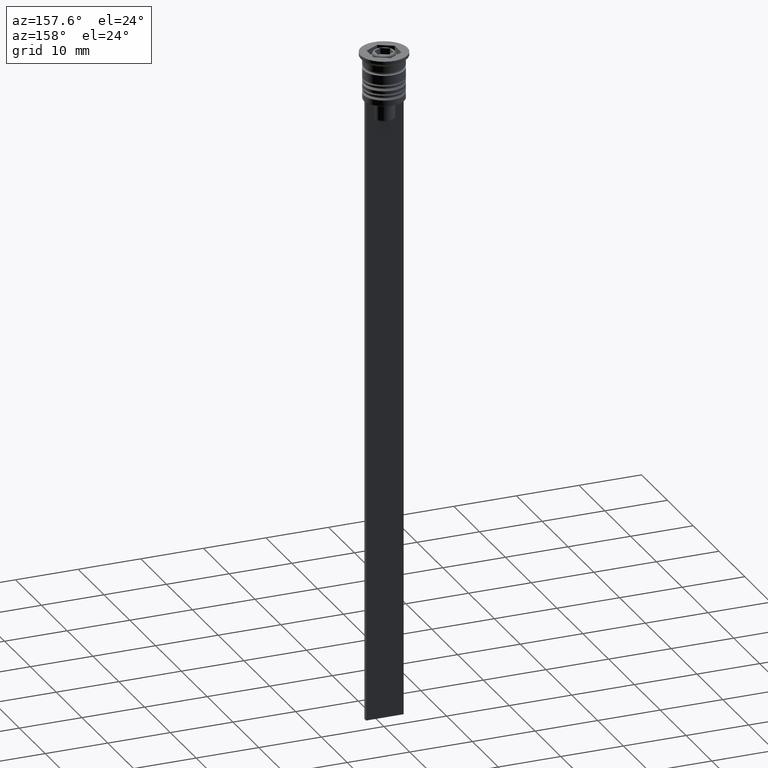
[diagram: clean part render]
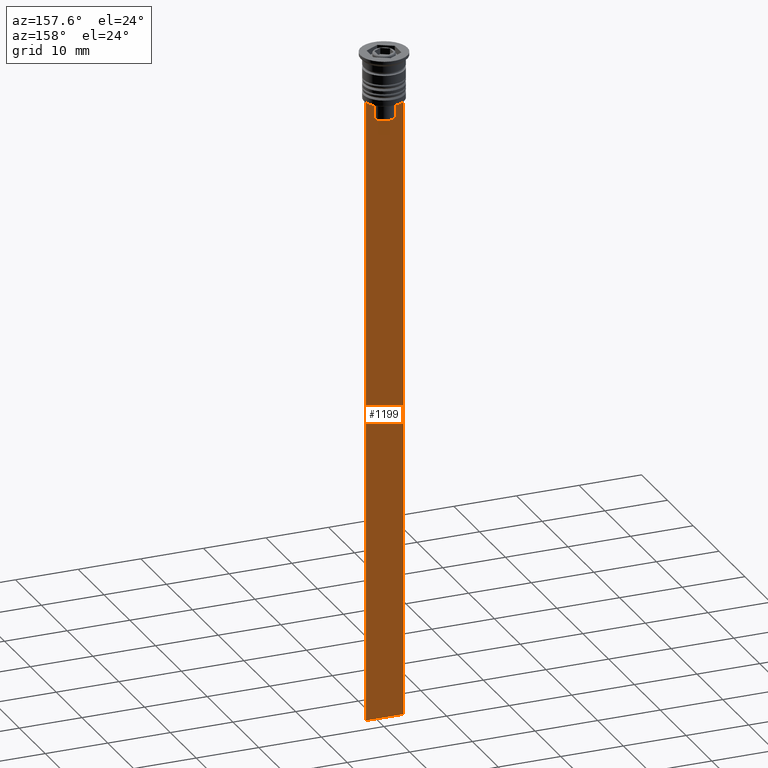
[diagram: same view with one face highlighted and labeled with its STEP entity id]
A machine part, auxiliary view. The second image highlights one B-rep face of the part: STEP entity #1199.
In plain terms, the highlighted planar face has unit normal (0, -1, -0).
Its self-contained STEP definition (entity closure, byte-faithful):
#1 = ORIENTED_EDGE ( 'NONE', *, *, #1791, .T. ) ;
#15 = DIRECTION ( 'NONE',  ( 1.000000000000000000, 0.000000000000000000, 0.000000000000000000 ) ) ;
#63 = CARTESIAN_POINT ( 'NONE',  ( -1.782527878033863589, 0.3500000000000000333, -7.833794036819862860 ) ) ;
#83 = CARTESIAN_POINT ( 'NONE',  ( -2.121320343559647270, 0.3500000000000000333, -7.500000000000000000 ) ) ;
#147 = DIRECTION ( 'NONE',  ( 0.000000000000000000, 0.000000000000000000, -1.000000000000000000 ) ) ;
#186 = CARTESIAN_POINT ( 'NONE',  ( -1.612451549659713601, 0.3500000000000000333, -8.000000000000000000 ) ) ;
#240 = EDGE_CURVE ( 'NONE', #1633, #662, #942, .T. ) ;
#242 = EDGE_CURVE ( 'NONE', #1014, #662, #1779, .T. ) ;
#254 = DIRECTION ( 'NONE',  ( -1.000000000000000000, 0.000000000000000000, 0.000000000000000000 ) ) ;
#269 = DIRECTION ( 'NONE',  ( 0.000000000000000000, 0.000000000000000000, -1.000000000000000000 ) ) ;
#354 = DIRECTION ( 'NONE',  ( 0.000000000000000000, 0.000000000000000000, -1.000000000000000000 ) ) ;
#357 = LINE ( 'NONE', #713, #520 ) ;
#391 = LINE ( 'NONE', #906, #655 ) ;
#420 = CARTESIAN_POINT ( 'NONE',  ( -3.000000000000004441, 0.3499999999999999223, -7.500000000000000000 ) ) ;
#431 = VECTOR ( 'NONE', #1282, 1000.000000000000000 ) ;
#443 = VERTEX_POINT ( 'NONE', #974 ) ;
#469 = CARTESIAN_POINT ( 'NONE',  ( 1.952040775369266346, 0.3500000000000000333, -7.667021484535463394 ) ) ;
#492 = CARTESIAN_POINT ( 'NONE',  ( 1.612451549659713601, 0.3500000000000000333, 0.000000000000000000 ) ) ;
#494 = CARTESIAN_POINT ( 'NONE',  ( 2.121320343559647270, 0.3500000000000000333, -7.500000000000000000 ) ) ;
#518 = VERTEX_POINT ( 'NONE', #1535 ) ;
#520 = VECTOR ( 'NONE', #15, 1000.000000000000000 ) ;
#550 = ORIENTED_EDGE ( 'NONE', *, *, #242, .T. ) ;
#566 = CARTESIAN_POINT ( 'NONE',  ( -3.000000000000004441, 0.3500000000000000333, -107.5000000000000000 ) ) ;
#574 = LINE ( 'NONE', #914, #733 ) ;
#606 = ORIENTED_EDGE ( 'NONE', *, *, #1078, .T. ) ;
#629 = CARTESIAN_POINT ( 'NONE',  ( 2.999999999999995559, 0.3500000000000000333, -1.459304675784417915 ) ) ;
#630 = VERTEX_POINT ( 'NONE', #1396 ) ;
#655 = VECTOR ( 'NONE', #1425, 1000.000000000000000 ) ;
#658 = AXIS2_PLACEMENT_3D ( 'NONE', #629, #2154, #269 ) ;
#662 = VERTEX_POINT ( 'NONE', #566 ) ;
#690 = VECTOR ( 'NONE', #354, 1000.000000000000000 ) ;
#713 = CARTESIAN_POINT ( 'NONE',  ( 2.999999999999995559, 0.3500000000000000333, -7.500000000000000000 ) ) ;
#725 = VECTOR ( 'NONE', #254, 1000.000000000000000 ) ;
#733 = VECTOR ( 'NONE', #1431, 1000.000000000000000 ) ;
#868 = CARTESIAN_POINT ( 'NONE',  ( -1.612451549659713601, 0.3500000000000000333, 0.000000000000000000 ) ) ;
#883 = ORIENTED_EDGE ( 'NONE', *, *, #240, .F. ) ;
#906 = CARTESIAN_POINT ( 'NONE',  ( 0.000000000000000000, 0.3500000000000000333, -10.49999999999999822 ) ) ;
#914 = CARTESIAN_POINT ( 'NONE',  ( 2.999999999999995559, 0.3500000000000000333, -7.500000000000000000 ) ) ;
#934 = EDGE_CURVE ( 'NONE', #993, #518, #1212, .T. ) ;
#936 = CARTESIAN_POINT ( 'NONE',  ( 2.999999999999995559, 0.3500000000000000333, -7.500000000000000000 ) ) ;
#941 = CARTESIAN_POINT ( 'NONE',  ( -1.612451549659713601, 0.3500000000000000333, -8.000000000000000000 ) ) ;
#942 = LINE ( 'NONE', #1915, #431 ) ;
#974 = CARTESIAN_POINT ( 'NONE',  ( 1.612451549659713601, 0.3500000000000000333, -10.49999999999999822 ) ) ;
#993 = VERTEX_POINT ( 'NONE', #186 ) ;
#1014 = VERTEX_POINT ( 'NONE', #1704 ) ;
#1023 = CARTESIAN_POINT ( 'NONE',  ( 1.782523989086206795, 0.3500000000000000333, -7.833797837268088315 ) ) ;
#1078 = EDGE_CURVE ( 'NONE', #1941, #1475, #574, .T. ) ;
#1114 = CARTESIAN_POINT ( 'NONE',  ( -1.952043732028445167, 0.3500000000000000333, -7.667018567316270961 ) ) ;
#1156 = CARTESIAN_POINT ( 'NONE',  ( 2.999999999999995559, 0.3500000000000000333, -1.459304675784417915 ) ) ;
#1199 = ADVANCED_FACE ( 'NONE', ( #2075 ), #1741, .F. ) ;
#1212 = LINE ( 'NONE', #868, #690 ) ;
#1223 = ORIENTED_EDGE ( 'NONE', *, *, #1680, .T. ) ;
#1264 = CARTESIAN_POINT ( 'NONE',  ( 2.121320343559647270, 0.3500000000000000333, -7.500000000000000000 ) ) ;
#1282 = DIRECTION ( 'NONE',  ( 0.000000000000000000, 0.000000000000000000, -1.000000000000000000 ) ) ;
#1295 = LINE ( 'NONE', #492, #1338 ) ;
#1336 = ORIENTED_EDGE ( 'NONE', *, *, #1888, .T. ) ;
#1338 = VECTOR ( 'NONE', #1497, 1000.000000000000000 ) ;
#1376 = B_SPLINE_CURVE_WITH_KNOTS ( 'NONE', 3,
 ( #1516, #1023, #469, #494 ),
 .UNSPECIFIED., .F., .F.,
 ( 4, 4 ),
 ( 0.008600796474521226961, 0.009317962624906524910 ),
 .UNSPECIFIED. ) ;
#1396 = CARTESIAN_POINT ( 'NONE',  ( 1.612451549659713601, 0.3500000000000000333, -8.000000000000000000 ) ) ;
#1425 = DIRECTION ( 'NONE',  ( 1.000000000000000000, 0.000000000000000000, 0.000000000000000000 ) ) ;
#1431 = DIRECTION ( 'NONE',  ( 1.000000000000000000, 0.000000000000000000, 0.000000000000000000 ) ) ;
#1475 = VERTEX_POINT ( 'NONE', #936 ) ;
#1497 = DIRECTION ( 'NONE',  ( -0.000000000000000000, -0.000000000000000000, 1.000000000000000000 ) ) ;
#1516 = CARTESIAN_POINT ( 'NONE',  ( 1.612451549659713601, 0.3500000000000000333, -8.000000000000000000 ) ) ;
#1535 = CARTESIAN_POINT ( 'NONE',  ( -1.612451549659713601, 0.3500000000000000333, -10.49999999999999822 ) ) ;
#1571 = ORIENTED_EDGE ( 'NONE', *, *, #934, .T. ) ;
#1632 = EDGE_CURVE ( 'NONE', #630, #1941, #1376, .T. ) ;
#1633 = VERTEX_POINT ( 'NONE', #420 ) ;
#1666 = ORIENTED_EDGE ( 'NONE', *, *, #1936, .T. ) ;
#1680 = EDGE_CURVE ( 'NONE', #1475, #1014, #2118, .T. ) ;
#1704 = CARTESIAN_POINT ( 'NONE',  ( 2.999999999999995559, 0.3500000000000000333, -107.5000000000000000 ) ) ;
#1741 = PLANE ( 'NONE',  #658 ) ;
#1779 = LINE ( 'NONE', #2080, #725 ) ;
#1791 = EDGE_CURVE ( 'NONE', #1633, #2041, #357, .T. ) ;
#1813 = CARTESIAN_POINT ( 'NONE',  ( -2.121320343559647270, 0.3500000000000000333, -7.500000000000000000 ) ) ;
#1853 = B_SPLINE_CURVE_WITH_KNOTS ( 'NONE', 3,
 ( #83, #1114, #63, #941 ),
 .UNSPECIFIED., .F., .F.,
 ( 4, 4 ),
 ( 0.003684653461239336628, 0.004398058763641255961 ),
 .UNSPECIFIED. ) ;
#1888 = EDGE_CURVE ( 'NONE', #2041, #993, #1853, .T. ) ;
#1915 = CARTESIAN_POINT ( 'NONE',  ( -3.000000000000004441, 0.3500000000000000333, -1.459304675784417915 ) ) ;
#1931 = VECTOR ( 'NONE', #147, 1000.000000000000000 ) ;
#1936 = EDGE_CURVE ( 'NONE', #518, #443, #391, .T. ) ;
#1941 = VERTEX_POINT ( 'NONE', #1264 ) ;
#1972 = EDGE_LOOP ( 'NONE', ( #1, #1336, #1571, #1666, #2091, #2171, #606, #1223, #550, #883 ) ) ;
#2041 = VERTEX_POINT ( 'NONE', #1813 ) ;
#2075 = FACE_OUTER_BOUND ( 'NONE', #1972, .T. ) ;
#2080 = CARTESIAN_POINT ( 'NONE',  ( 2.999999999999995559, 0.3500000000000000333, -107.5000000000000000 ) ) ;
#2091 = ORIENTED_EDGE ( 'NONE', *, *, #2093, .T. ) ;
#2093 = EDGE_CURVE ( 'NONE', #443, #630, #1295, .T. ) ;
#2118 = LINE ( 'NONE', #1156, #1931 ) ;
#2154 = DIRECTION ( 'NONE',  ( 0.000000000000000000, -1.000000000000000000, -0.000000000000000000 ) ) ;
#2171 = ORIENTED_EDGE ( 'NONE', *, *, #1632, .T. ) ;